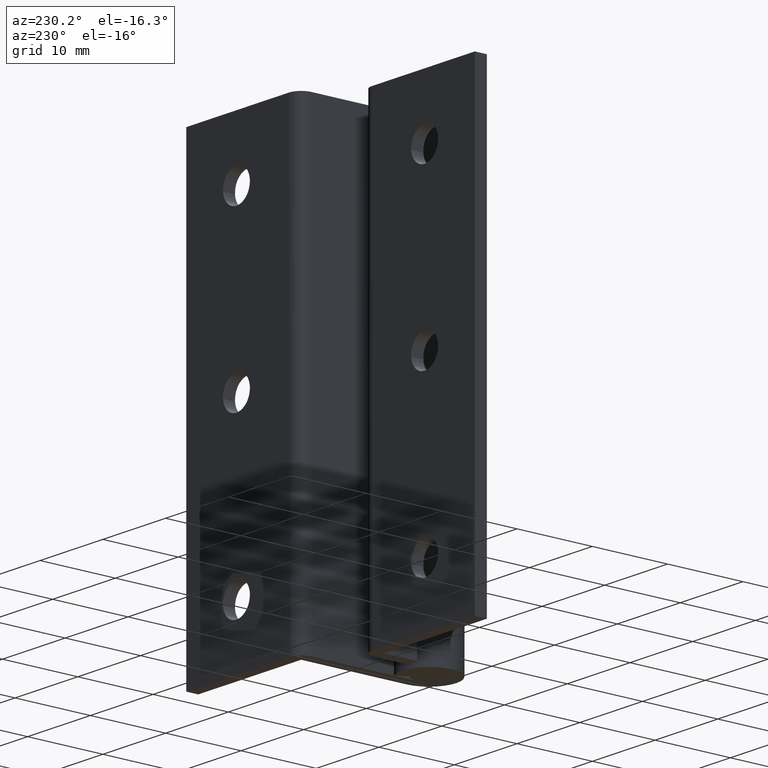
[diagram: clean part render]
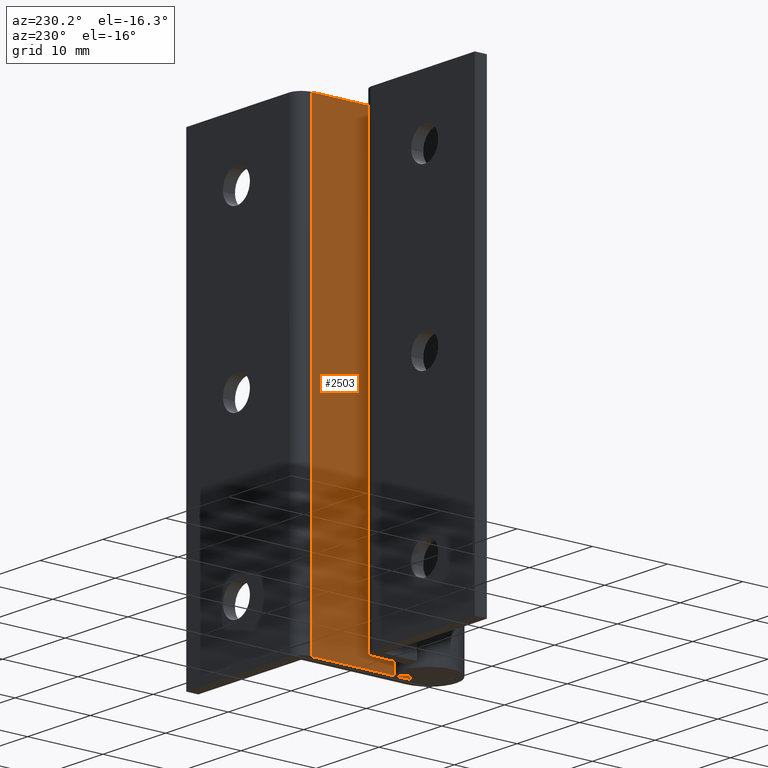
[diagram: same view with one face highlighted and labeled with its STEP entity id]
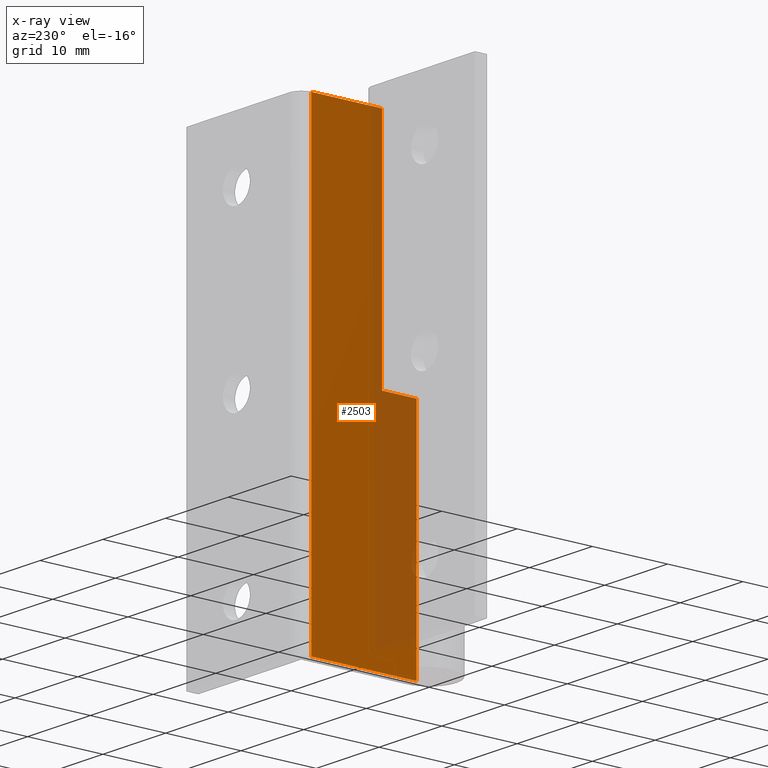
[diagram: x-ray of the same camera — body ghosted, the highlighted face saturated]
A machine part, auxiliary view. The second image highlights one B-rep face of the part: STEP entity #2503.
The next image is the same camera in x-ray: the body ghosted, the highlighted face saturated — about 27% of this face is hidden behind the body in this view.
In plain terms, the highlighted face is a freeform B-spline surface patch.
Its self-contained STEP definition (entity closure, byte-faithful):
#2083=CARTESIAN_POINT('',(2.0,13.999998000000000,59.999991999999899));
#2084=VERTEX_POINT('',#2083);
#2105=CARTESIAN_POINT('',(2.0,13.999998000000000,0.0));
#2106=VERTEX_POINT('',#2105);
#2120=CARTESIAN_POINT('',(2.0,13.999998000000000,59.999991999999899));
#2121=CARTESIAN_POINT('',(2.0,13.999998000000000,0.0));
#2122=QUASI_UNIFORM_CURVE('',1,(#2120,#2121),.UNSPECIFIED.,.F.,.U.);
#2123=EDGE_CURVE('',#2084,#2106,#2122,.T.);
#2133=CARTESIAN_POINT('',(2.0,4.599991000000000,59.999991999999899));
#2134=VERTEX_POINT('',#2133);
#2135=CARTESIAN_POINT('',(2.0,4.599991000000000,29.999991999999999));
#2136=VERTEX_POINT('',#2135);
#2137=CARTESIAN_POINT('',(2.0,4.599991000000000,59.999991999999899));
#2138=CARTESIAN_POINT('',(2.0,4.599991000000000,29.999991999999999));
#2139=QUASI_UNIFORM_CURVE('',1,(#2137,#2138),.UNSPECIFIED.,.F.,.U.);
#2140=EDGE_CURVE('',#2134,#2136,#2139,.T.);
#2198=CARTESIAN_POINT('',(2.0,0.0,29.999992000000049));
#2199=VERTEX_POINT('',#2198);
#2200=CARTESIAN_POINT('',(2.0,4.599991000000000,29.999991999999999));
#2201=CARTESIAN_POINT('',(2.0,0.0,29.999992000000049));
#2202=QUASI_UNIFORM_CURVE('',1,(#2200,#2201),.UNSPECIFIED.,.F.,.U.);
#2203=EDGE_CURVE('',#2136,#2199,#2202,.T.);
#2239=CARTESIAN_POINT('',(2.0,0.0,0.0));
#2240=VERTEX_POINT('',#2239);
#2241=CARTESIAN_POINT('',(2.0,0.0,0.0));
#2242=CARTESIAN_POINT('',(2.0,13.999998000000000,0.0));
#2243=QUASI_UNIFORM_CURVE('',1,(#2241,#2242),.UNSPECIFIED.,.F.,.U.);
#2244=EDGE_CURVE('',#2240,#2106,#2243,.T.);
#2338=CARTESIAN_POINT('',(2.0,4.599991000000000,59.999991999999899));
#2339=CARTESIAN_POINT('',(2.0,13.999998000000000,59.999991999999899));
#2340=QUASI_UNIFORM_CURVE('',1,(#2338,#2339),.UNSPECIFIED.,.F.,.U.);
#2341=EDGE_CURVE('',#2134,#2084,#2340,.T.);
#2394=CARTESIAN_POINT('',(2.0,0.0,29.999992000000049));
#2395=CARTESIAN_POINT('',(2.0,0.0,0.0));
#2396=QUASI_UNIFORM_CURVE('',1,(#2394,#2395),.UNSPECIFIED.,.F.,.U.);
#2397=EDGE_CURVE('',#2199,#2240,#2396,.T.);
#2490=CARTESIAN_POINT('',(2.0,-0.699299872965286,-2.996999484108366));
#2491=CARTESIAN_POINT('',(2.0,-0.699299872965286,62.996993093433467));
#2492=CARTESIAN_POINT('',(2.0,14.699298248474500,-2.996999484108366));
#2493=CARTESIAN_POINT('',(2.0,14.699298248474500,62.996993093433467));
#2494=B_SPLINE_SURFACE_WITH_KNOTS('',1,1,((#2490,#2492),(#2491,#2493)),.UNSPECIFIED.,.F.,.F.,.U.,(2,2),(2,2),(0.0,65.993992577541832),(0.0,15.398598121439781),.UNSPECIFIED.);
#2495=ORIENTED_EDGE('',*,*,#2341,.T.);
#2496=ORIENTED_EDGE('',*,*,#2123,.T.);
#2497=ORIENTED_EDGE('',*,*,#2244,.F.);
#2498=ORIENTED_EDGE('',*,*,#2397,.F.);
#2499=ORIENTED_EDGE('',*,*,#2203,.F.);
#2500=ORIENTED_EDGE('',*,*,#2140,.F.);
#2501=EDGE_LOOP('',(#2495,#2496,#2497,#2498,#2499,#2500));
#2502=FACE_OUTER_BOUND('',#2501,.T.);
#2503=ADVANCED_FACE('',(#2502),#2494,.T.);